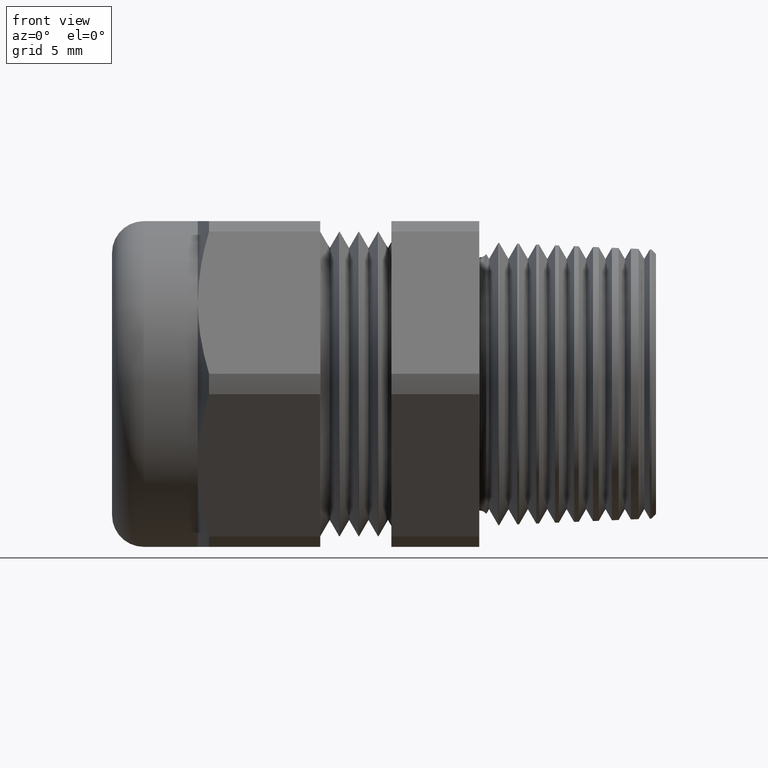
[diagram: clean part render]
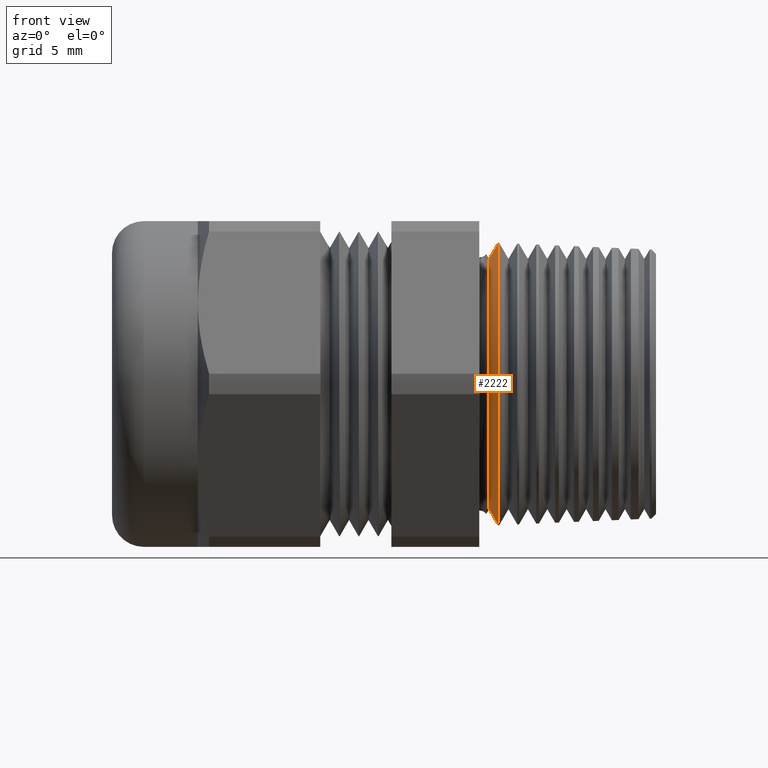
[diagram: same view with one face highlighted and labeled with its STEP entity id]
A machine part, front view. The second image highlights one B-rep face of the part: STEP entity #2222.
In plain terms, the highlighted conical surface has half-angle 60 deg.
Its self-contained STEP definition (entity closure, byte-faithful):
#159 = VERTEX_POINT ( 'NONE', #3071 ) ;
#161 = EDGE_CURVE ( 'NONE', #1947, #159, #3064, .T. ) ;
#238 = DIRECTION ( 'NONE',  ( 0.0000000000000000000, 0.0000000000000000000, -1.000000000000000000 ) ) ;
#239 = DIRECTION ( 'NONE',  ( 1.000000000000000000, 0.0000000000000000000, 0.0000000000000000000 ) ) ;
#240 = AXIS2_PLACEMENT_3D ( 'NONE', #242, #239, #238 ) ;
#241 = CONICAL_SURFACE ( 'NONE', #240, 0.3610903495974813200, 1.047197551196595400 ) ;
#242 = CARTESIAN_POINT ( 'NONE',  ( 0.02823799982586398800, 0.0000000000000000000, 0.0000000000000000000 ) ) ;
#243 = FACE_OUTER_BOUND ( 'NONE', #2217, .T. ) ;
#1215 = DIRECTION ( 'NONE',  ( 0.0000000000000000000, 0.0000000000000000000, 1.000000000000000000 ) ) ;
#1216 = DIRECTION ( 'NONE',  ( -1.000000000000000000, 0.0000000000000000000, 0.0000000000000000000 ) ) ;
#1217 = AXIS2_PLACEMENT_3D ( 'NONE', #1222, #1216, #1215 ) ;
#1218 = CIRCLE ( 'NONE', #1217, 0.3610903495974813200 ) ;
#1222 = CARTESIAN_POINT ( 'NONE',  ( 0.02823799982586398800, 0.0000000000000000000, 0.0000000000000000000 ) ) ;
#1372 = DIRECTION ( 'NONE',  ( 0.0000000000000000000, 0.0000000000000000000, 1.000000000000000000 ) ) ;
#1373 = DIRECTION ( 'NONE',  ( -1.000000000000000000, 0.0000000000000000000, 0.0000000000000000000 ) ) ;
#1374 = CARTESIAN_POINT ( 'NONE',  ( 0.05508737596557451700, 0.0000000000000000000, 0.0000000000000000000 ) ) ;
#1375 = AXIS2_PLACEMENT_3D ( 'NONE', #1374, #1373, #1372 ) ;
#1376 = CIRCLE ( 'NONE', #1375, 0.4075948332229872300 ) ;
#1946 = VERTEX_POINT ( 'NONE', #3215 ) ;
#1947 = VERTEX_POINT ( 'NONE', #3214 ) ;
#1948 = VERTEX_POINT ( 'NONE', #3213 ) ;
#1949 = EDGE_CURVE ( 'NONE', #1948, #1946, #3212, .T. ) ;
#2156 = ORIENTED_EDGE ( 'NONE', *, *, #2803, .T. ) ;
#2166 = ORIENTED_EDGE ( 'NONE', *, *, #161, .T. ) ;
#2168 = ORIENTED_EDGE ( 'NONE', *, *, #2724, .F. ) ;
#2183 = ORIENTED_EDGE ( 'NONE', *, *, #1949, .F. ) ;
#2217 = EDGE_LOOP ( 'NONE', ( #2183, #2168, #2166, #2156 ) ) ;
#2222 = ADVANCED_FACE ( 'NONE', ( #243 ), #241, .T. ) ;
#2724 = EDGE_CURVE ( 'NONE', #1947, #1948, #1218, .T. ) ;
#2803 = EDGE_CURVE ( 'NONE', #159, #1946, #1376, .T. ) ;
#3061 = DIRECTION ( 'NONE',  ( 0.5000000000000020000, 0.0000000000000000000, -0.8660254037844374900 ) ) ;
#3062 = VECTOR ( 'NONE', #3061, 39.37007874015748100 ) ;
#3063 = CARTESIAN_POINT ( 'NONE',  ( 0.02823799982586398800, 0.0000000000000000000, -0.3610903495974813200 ) ) ;
#3064 = LINE ( 'NONE', #3063, #3062 ) ;
#3071 = CARTESIAN_POINT ( 'NONE',  ( 0.05508737596557451700, 4.991597078555306700E-017, -0.4075948332229873400 ) ) ;
#3209 = DIRECTION ( 'NONE',  ( 0.5000000000000020000, 1.060575238724905400E-016, 0.8660254037844374900 ) ) ;
#3210 = VECTOR ( 'NONE', #3209, 39.37007874015748100 ) ;
#3211 = CARTESIAN_POINT ( 'NONE',  ( 0.02823799982586398800, 4.422081408375542100E-017, 0.3610903495974813200 ) ) ;
#3212 = LINE ( 'NONE', #3211, #3210 ) ;
#3213 = CARTESIAN_POINT ( 'NONE',  ( 0.02823799982586398800, 0.0000000000000000000, 0.3610903495974813200 ) ) ;
#3214 = CARTESIAN_POINT ( 'NONE',  ( 0.02823799982586398800, 4.508213974712474500E-017, -0.3610903495974813200 ) ) ;
#3215 = CARTESIAN_POINT ( 'NONE',  ( 0.05508737596557451700, 0.0000000000000000000, 0.4075948332229873400 ) ) ;